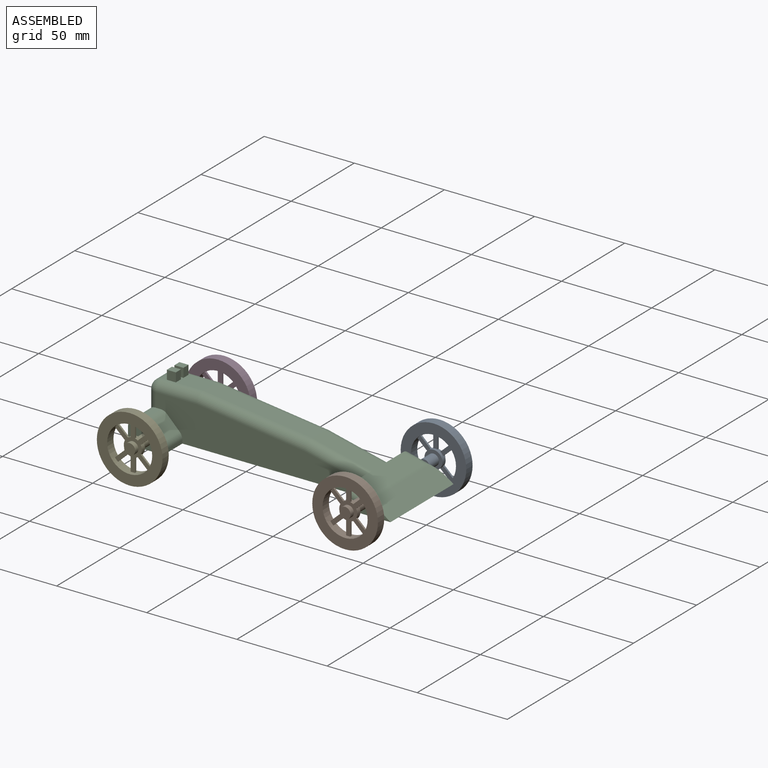
[diagram: assembled view]
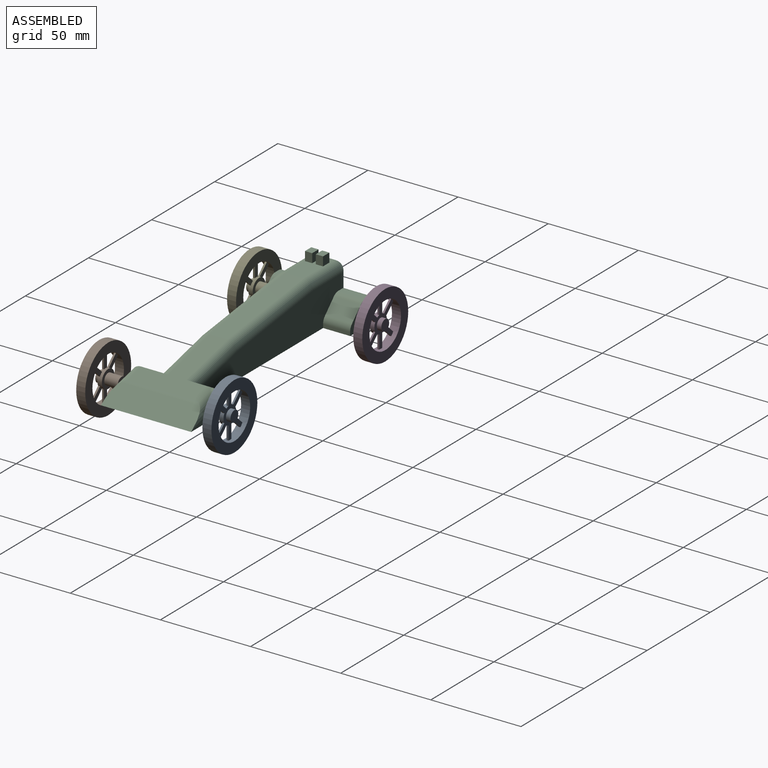
[diagram: assembled view, second angle]
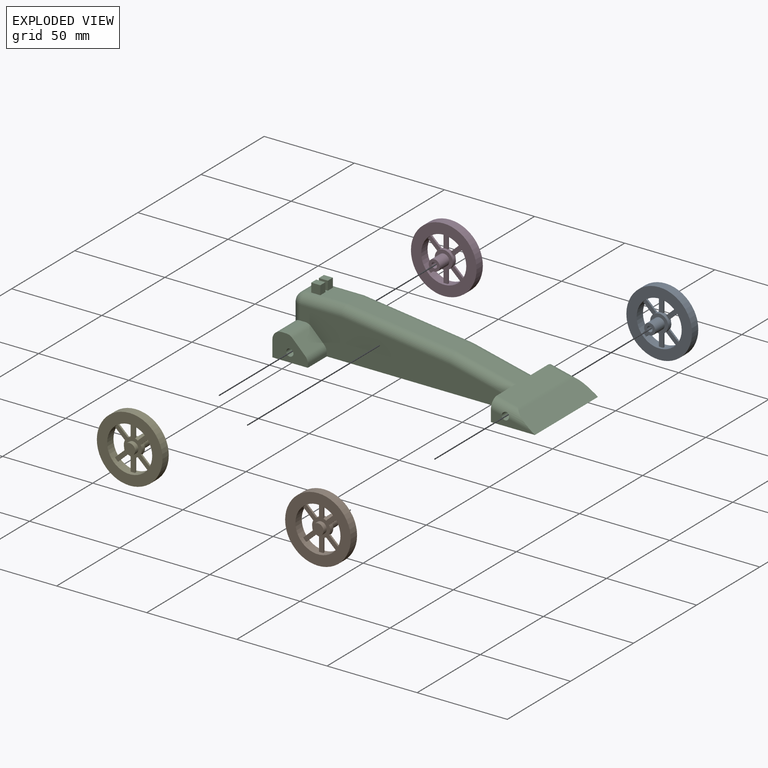
[diagram: exploded view]
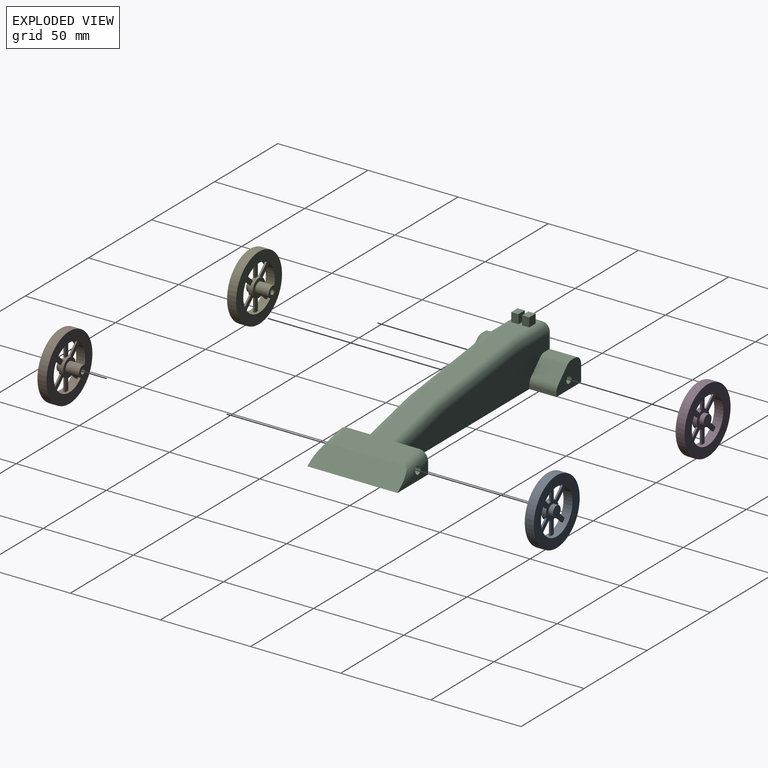
[diagram: exploded view, second angle]
ASSEMBLY  parts=5 mates=4
PART A: 31 faces, bbox 36.4x12.5x36.4 mm
  f0: cylinder r=3.1mm len=7.5mm, axis (0,-1,0), area 146.1mm2, adj f2,f5
  f1: cylinder r=1.5mm len=10mm, axis (0,-1,0), area 94.2mm2, adj f2,f3
  f2: plane 6.2x6.2mm, normal (0,-1,0), area 23.1mm2, adj f0,f1
  f3: plane 3x3mm, normal (0,-1,0), area 7.1mm2, adj f1
  f4: cylinder r=5mm len=10mm, axis (0,1,0), area 64mm2, adj f5,f6,f9,f10,f11,f12,f13,f14
  f5: plane 10x10mm, normal (0,-1,0), area 48.3mm2, adj f0,f4
  f6: plane 25.02x19.87mm, normal (0,1,0), area 156.8mm2, adj f4,f8,f9,f10,f12,f13,f15,f16
  f7: plane 6.18x6.18mm, normal (0,1,0), area 30mm2, adj f8
  f8: cylinder r=3.09mm len=6.18mm, axis (0,-1,0), area 48.5mm2, adj f6,f7
  f9: plane 5.55x5.17mm, normal (0.68,0,-0.73), area 7.6mm2, adj f4,f6,f11,f27
  f10: plane 5.55x5.17mm, normal (-0.68,0,0.73), area 7.6mm2, adj f4,f6,f11,f27
  f11: plane 7.19x6.93mm, normal (0,-1,0), area 18.1mm2, adj f4,f9,f10,f27
  f12: plane 7.59x1mm, normal (1,0,0), area 7.6mm2, adj f4,f6,f14,f27
  f13: plane 7.59x1mm, normal (-1,0,0), area 7.6mm2, adj f4,f6,f14,f27
  f14: plane 7.65x2.4mm, normal (0,-1,0), area 18.1mm2, adj f4,f12,f13,f27
  f15: plane 5.55x5.17mm, normal (-0.68,0,-0.73), area 7.6mm2, adj f4,f6,f17,f27
  f16: plane 5.55x5.17mm, normal (0.68,0,0.73), area 7.6mm2, adj f4,f6,f17,f27
  f17: plane 7.19x6.93mm, normal (0,-1,0), area 18.1mm2, adj f4,f15,f16,f27
  f18: plane 5.55x5.17mm, normal (-0.68,0,0.73), area 7.6mm2, adj f4,f6,f20,f27
  f19: plane 5.55x5.17mm, normal (0.68,0,-0.73), area 7.6mm2, adj f4,f6,f20,f27
  f20: plane 7.19x6.93mm, normal (0,-1,0), area 18.1mm2, adj f4,f18,f19,f27
  f21: plane 7.59x1mm, normal (-1,0,0), area 7.6mm2, adj f4,f6,f23,f27
  f22: plane 7.59x1mm, normal (1,0,0), area 7.6mm2, adj f4,f6,f23,f27
  f23: plane 7.65x2.4mm, normal (0,-1,0), area 18.1mm2, adj f4,f21,f22,f27
  f24: plane 5.55x5.17mm, normal (-0.68,0,-0.73), area 7.6mm2, adj f4,f6,f26,f27
  f25: plane 5.55x5.17mm, normal (0.68,0,0.73), area 7.6mm2, adj f4,f6,f26,f27
  f26: plane 7.19x6.93mm, normal (0,-1,0), area 18.1mm2, adj f4,f24,f25,f27
  f27: cylinder r=12.5mm len=25mm, axis (0,-1,0), area 378.3mm2, adj f6,f9,f10,f11,f12,f13,f14,f15
  f28: cylinder r=18.2mm len=36.4mm, axis (0,-1,0), area 571.8mm2, adj f29,f30
  f29: plane 36.4x36.4mm, normal (0,1,0), area 549.7mm2, adj f27,f28
  f30: plane 36.4x36.4mm, normal (0,-1,0), area 549.7mm2, adj f27,f28
PART B: 31 faces, bbox 36.4x12.5x36.4 mm
  f0: cylinder r=3.1mm len=7.5mm, axis (0,1,0), area 146.1mm2, adj f2,f5
  f1: cylinder r=1.5mm len=10mm, axis (0,1,0), area 94.2mm2, adj f2,f3
  f2: plane 6.2x6.2mm, normal (0,1,0), area 23.1mm2, adj f0,f1
  f3: plane 3x3mm, normal (0,1,0), area 7.1mm2, adj f1
  f4: cylinder r=5mm len=10mm, axis (0,-1,0), area 64mm2, adj f5,f6,f9,f10,f11,f12,f13,f14
  f5: plane 10x10mm, normal (0,1,0), area 48.3mm2, adj f0,f4
  f6: plane 25.02x19.87mm, normal (0,-1,0), area 156.8mm2, adj f4,f8,f9,f10,f12,f13,f15,f16
  f7: plane 6.18x6.18mm, normal (0,-1,0), area 30mm2, adj f8
  f8: cylinder r=3.09mm len=6.18mm, axis (0,1,0), area 48.5mm2, adj f6,f7
  f9: plane 5.55x5.17mm, normal (0.68,0,-0.73), area 7.6mm2, adj f4,f6,f11,f27
  f10: plane 5.55x5.17mm, normal (-0.68,0,0.73), area 7.6mm2, adj f4,f6,f11,f27
  f11: plane 7.19x6.93mm, normal (0,1,0), area 18.1mm2, adj f4,f9,f10,f27
  f12: plane 7.59x1mm, normal (1,0,0), area 7.6mm2, adj f4,f6,f14,f27
  f13: plane 7.59x1mm, normal (-1,0,0), area 7.6mm2, adj f4,f6,f14,f27
  f14: plane 7.65x2.4mm, normal (0,1,0), area 18.1mm2, adj f4,f12,f13,f27
  f15: plane 5.55x5.17mm, normal (-0.68,0,-0.73), area 7.6mm2, adj f4,f6,f17,f27
  f16: plane 5.55x5.17mm, normal (0.68,0,0.73), area 7.6mm2, adj f4,f6,f17,f27
  f17: plane 7.19x6.93mm, normal (0,1,0), area 18.1mm2, adj f4,f15,f16,f27
  f18: plane 5.55x5.17mm, normal (-0.68,0,0.73), area 7.6mm2, adj f4,f6,f20,f27
  f19: plane 5.55x5.17mm, normal (0.68,0,-0.73), area 7.6mm2, adj f4,f6,f20,f27
  f20: plane 7.19x6.93mm, normal (0,1,0), area 18.1mm2, adj f4,f18,f19,f27
  f21: plane 7.59x1mm, normal (-1,0,0), area 7.6mm2, adj f4,f6,f23,f27
  f22: plane 7.59x1mm, normal (1,0,0), area 7.6mm2, adj f4,f6,f23,f27
  f23: plane 7.65x2.4mm, normal (0,1,0), area 18.1mm2, adj f4,f21,f22,f27
  f24: plane 5.55x5.17mm, normal (-0.68,0,-0.73), area 7.6mm2, adj f4,f6,f26,f27
  f25: plane 5.55x5.17mm, normal (0.68,0,0.73), area 7.6mm2, adj f4,f6,f26,f27
  f26: plane 7.19x6.93mm, normal (0,1,0), area 18.1mm2, adj f4,f24,f25,f27
  f27: cylinder r=12.5mm len=25mm, axis (0,1,0), area 378.3mm2, adj f6,f9,f10,f11,f12,f13,f14,f15
  f28: cylinder r=18.2mm len=36.4mm, axis (0,1,0), area 571.8mm2, adj f29,f30
  f29: plane 36.4x36.4mm, normal (0,-1,0), area 549.7mm2, adj f27,f28
  f30: plane 36.4x36.4mm, normal (0,1,0), area 549.7mm2, adj f27,f28
PART C: 58 faces, bbox 145.6x50x31.9 mm
  f0: plane 10x6.86mm, normal (-1,0,0), area 29.3mm2, adj f10,f36,f47,f57
  f1: plane 22.92x10mm, normal (0,0,1), area 189.2mm2, adj f22,f36,f37,f38,f39,f42,f44,f45
  f2: plane 43.75x40mm, normal (0.23,0,0.97), area 799.1mm2, adj f14,f17,f31,f32,f33,f34,f35,f52
  f3: plane 15x1.98mm, normal (1,0,0), area 29.7mm2, adj f6,f7,f18,f28
  f4: plane 24.41x6.35mm, normal (0,-1,0), area 80.2mm2, adj f7,f13,f14,f19,f32
  f5: plane 19.64x14.05mm, normal (0,-1,0), area 207mm2, adj f7,f8,f12,f16,f21,f24,f25,f26
  f6: plane 19.64x14.05mm, normal (0,1,0), area 207mm2, adj f3,f7,f8,f12,f20,f23,f27,f28
  f7: plane 145.59x50mm, normal (0,0,-1), area 4233.4mm2, adj f3,f4,f5,f6,f8,f9,f14,f15
  f8: plane 50x15mm, normal (-1,0,0), area 472.7mm2, adj f5,f6,f7,f10,f29,f30,f47,f57
  f9: plane 24.41x6.35mm, normal (0,1,0), area 80.2mm2, adj f7,f13,f17,f19,f31
  f10: cylinder r=5mm len=60mm, axis (-1,0,0), area 1885mm2, adj f0,f8,f11
  f11: plane 10x10mm, normal (-1,0,0), area 78.5mm2, adj f10
  f12: cylinder r=2mm len=50mm, axis (0,-1,0), area 628.3mm2, adj f5,f6
  f13: cylinder r=2mm len=50mm, axis (0,-1,0), area 623.7mm2, adj f4,f9,f31,f32
  f14: plane 20x11.49mm, normal (-1,0,0), area 172.3mm2, adj f2,f4,f7,f15,f32,f35
  f15: plane 116.18x21.86mm, normal (0,-1,0), area 1768.6mm2, adj f7,f14,f16,f21,f24,f25,f26,f35
  f16: plane 15x1.98mm, normal (1,0,0), area 29.7mm2, adj f5,f7,f15,f26
  f17: plane 20x11.49mm, normal (-1,0,0), area 172.3mm2, adj f2,f7,f9,f18,f31,f34
  f18: plane 116.18x21.86mm, normal (0,1,0), area 1768.6mm2, adj f3,f7,f17,f20,f23,f27,f28,f34
  f19: plane 50x11.32mm, normal (0.58,0,0.82), area 672.7mm2, adj f4,f7,f9,f31,f32,f33
  f20: plane 15x2.57mm, normal (0,0,1), area 38.6mm2, adj f6,f18,f27,f29
  f21: plane 15x2.57mm, normal (0,0,1), area 38.6mm2, adj f5,f15,f25,f30
  f22: plane 60.33x10mm, normal (0.13,0,0.99), area 608.1mm2, adj f1,f50,f52,f54
  f23: plane 15x7.07mm, normal (0.71,0,0.71), area 150mm2, adj f6,f18,f27,f28
  f24: plane 15x7.07mm, normal (0.71,0,0.71), area 150mm2, adj f5,f15,f25,f26
  f25: cylinder r=5mm len=15mm, axis (0,1,0), area 58.9mm2, adj f5,f15,f21,f24
  f26: cylinder r=5mm len=15mm, axis (0,-1,0), area 58.9mm2, adj f5,f15,f16,f24
  f27: cylinder r=5mm len=15mm, axis (0,-1,0), area 58.9mm2, adj f6,f18,f20,f23
  f28: cylinder r=5mm len=15mm, axis (0,1,0), area 58.9mm2, adj f3,f6,f18,f23
  f29: cylinder r=5mm len=20mm, axis (0,-1,0), area 132.1mm2, adj f6,f8,f20,f47
  f30: cylinder r=5mm len=20mm, axis (0,-1,0), area 132.1mm2, adj f5,f8,f21,f57
  f31: cylinder r=5mm len=25.42mm, axis (0.97,0,-0.23), area 121.9mm2, adj f2,f9,f13,f17,f19,f33
  f32: cylinder r=5mm len=25.42mm, axis (0.97,0,-0.23), area 121.9mm2, adj f2,f4,f13,f14,f19,f33
  f33: cylinder r=5mm len=43.76mm, axis (0,-1,0), area 80.9mm2, adj f2,f19,f31,f32
  f34: cylinder r=5mm len=34.7mm, axis (-0.97,0,0.23), area 264.9mm2, adj f2,f17,f18,f51
  f35: cylinder r=5mm len=34.7mm, axis (0.97,0,-0.23), area 264.9mm2, adj f2,f14,f15,f53
  f36: cylinder r=5mm len=10mm, axis (0,-1,0), area 78.5mm2, adj f0,f1,f48,f56
  f37: plane 5x4mm, normal (-1,0,0), area 20mm2, adj f1,f38,f40,f41
  f38: plane 5x5mm, normal (0,-1,0), area 25mm2, adj f1,f37,f39,f41
  f39: plane 5x4mm, normal (1,0,0), area 20mm2, adj f1,f38,f40,f41
  f40: plane 5x5mm, normal (0,1,0), area 25mm2, adj f37,f39,f41,f49
  f41: plane 5x4mm, normal (0,0,1), area 20mm2, adj f37,f38,f39,f40
  f42: plane 5x4mm, normal (-1,0,0), area 20mm2, adj f1,f43,f45,f46
  f43: plane 5x5mm, normal (0,-1,0), area 25mm2, adj f42,f44,f46,f55
  f44: plane 5x4mm, normal (1,0,0), area 20mm2, adj f1,f43,f45,f46
  f45: plane 5x5mm, normal (0,1,0), area 25mm2, adj f1,f42,f44,f46
  f46: plane 5x4mm, normal (0,0,1), area 20mm2, adj f42,f43,f44,f45
  f47: cylinder r=5mm len=12.81mm, axis (0,0,1), area 75.6mm2, adj f0,f8,f18,f29,f48
  f48: sphere r=5mm, area 39.3mm2, adj f36,f47,f49
  f49: cylinder r=5mm len=22.92mm, axis (-1,0,0), area 179.1mm2, adj f1,f18,f40,f48,f50
  f50: cylinder r=5mm len=60.96mm, axis (0.99,0,-0.13), area 476.7mm2, adj f18,f22,f49,f51
  f51: sphere r=5mm, area 2.6mm2, adj f34,f50,f52
  f52: cylinder r=5mm len=10mm, axis (0,1,0), area 5.2mm2, adj f2,f22,f51,f53
  f53: sphere r=5mm, area 2.6mm2, adj f35,f52,f54
  f54: cylinder r=5mm len=60.96mm, axis (-0.99,0,0.13), area 476.7mm2, adj f15,f22,f53,f55
  f55: cylinder r=5mm len=22.92mm, axis (1,0,0), area 179.1mm2, adj f1,f15,f43,f54,f56
  f56: sphere r=5mm, area 39.3mm2, adj f36,f55,f57
  f57: cylinder r=5mm len=12.81mm, axis (0,0,1), area 75.6mm2, adj f0,f8,f15,f30,f56
PART D: same geometry as A
PART E: same geometry as B
PLACE A t=(38.12,-9.8,-7.35)mm
PLACE B t=(38.12,-34.8,-7.35)mm
PLACE C t=(-5.65,36.6,-12.32)mm
PLACE D t=(-81.38,-9.8,-7.35)mm
PLACE E t=(-81.38,-34.8,-7.35)mm
MATE revolute A.f0 <-> C.f13  axis (0,-1,0) through (38.12,15.2,-7.35)mm
MATE revolute B.f0 <-> C.f13  axis (0,1,0) through (38.12,-34.8,-7.35)mm
MATE revolute D.f0 <-> C.f12  axis (0,-1,0) through (-81.38,15.2,-7.35)mm
MATE revolute E.f0 <-> C.f12  axis (0,1,0) through (-81.38,-34.8,-7.35)mm
